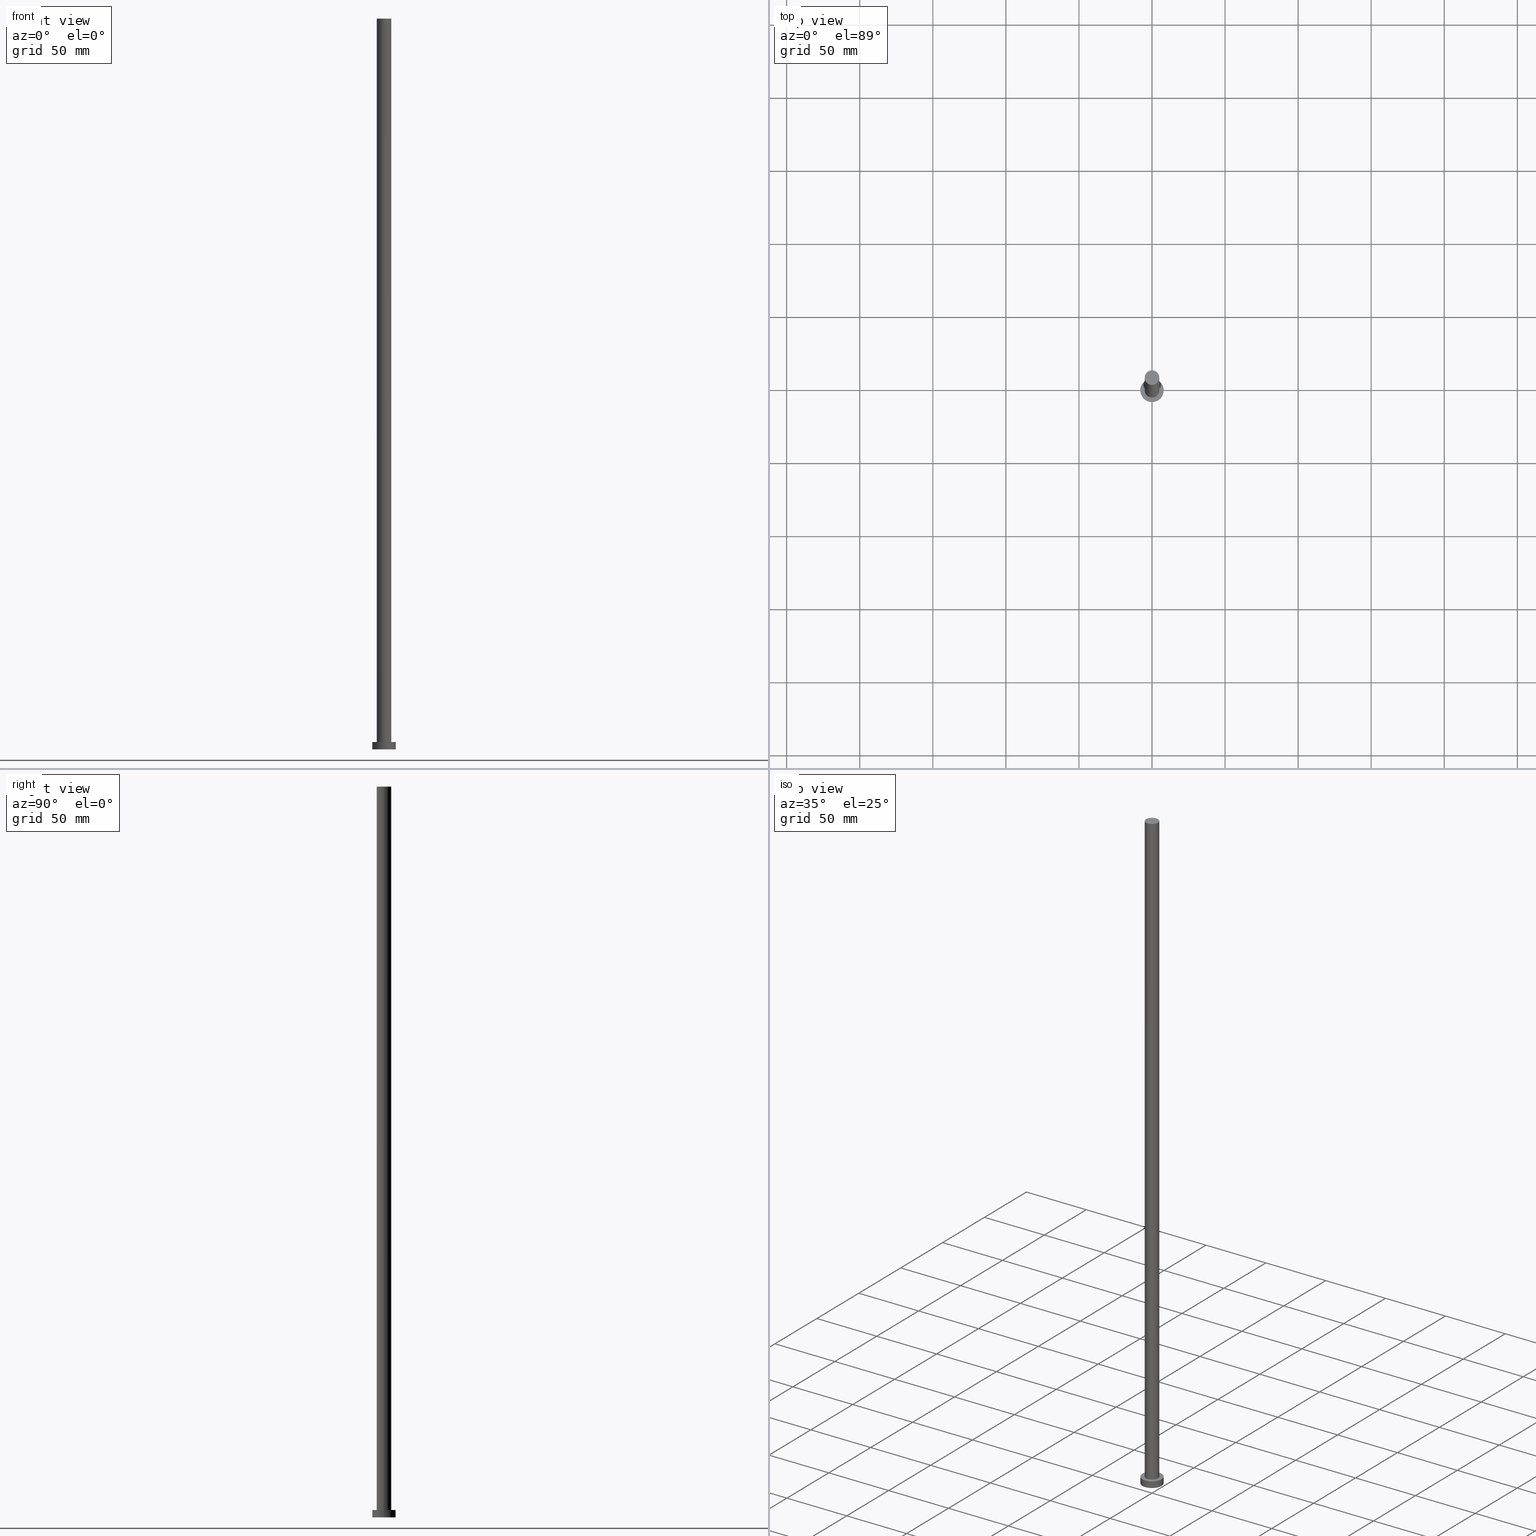
[diagram: canonical four-view strip — front | top / right | iso, engineering-drawing reading convention]
A machine part, canonical four-view strip (front | top / right | iso — engineering-drawing reading convention). The complete STEP part file that produces these views, byte-faithful:
ISO-10303-21;
HEADER;
FILE_DESCRIPTION (( 'STEP AP203' ),
    '1' );
FILE_NAME ('cfef.STEP',
    '2023-02-13T09:58:44',
    ( '' ),
    ( '' ),
    'SwSTEP 2.0',
    'SolidWorks 2019',
    '' );
FILE_SCHEMA (( 'CONFIG_CONTROL_DESIGN' ));
ENDSEC;

DATA;
#1 = DIRECTION ( 'NONE',  ( 1.000000000000000000, 0.000000000000000000, -0.000000000000000000 ) ) ;
#2 = DATE_AND_TIME ( #242, #125 ) ;
#3 = LINE ( 'NONE', #238, #71 ) ;
#4 = ORIENTED_EDGE ( 'NONE', *, *, #44, .T. ) ;
#5 = CC_DESIGN_APPROVAL ( #38, ( #83 ) ) ;
#6 = DIRECTION ( 'NONE',  ( 0.000000000000000000, 0.000000000000000000, 1.000000000000000000 ) ) ;
#7 = DIRECTION ( 'NONE',  ( -0.000000000000000000, -0.000000000000000000, -1.000000000000000000 ) ) ;
#8 = AXIS2_PLACEMENT_3D ( 'NONE', #141, #221, #95 ) ;
#9 = DIRECTION ( 'NONE',  ( -0.000000000000000000, -0.000000000000000000, -1.000000000000000000 ) ) ;
#10 = EDGE_LOOP ( 'NONE', ( #132, #246, #137, #88 ) ) ;
#11 = CARTESIAN_POINT ( 'NONE',  ( 0.000000000000000000, 0.000000000000000000, 5.000000000000000000 ) ) ;
#12 = ADVANCED_BREP_SHAPE_REPRESENTATION ( 'cfef', ( #127, #27 ), #66 ) ;
#13 = DIRECTION ( 'NONE',  ( -1.000000000000000000, 0.000000000000000000, 0.000000000000000000 ) ) ;
#14 = AXIS2_PLACEMENT_3D ( 'NONE', #106, #57, #1 ) ;
#15 = EDGE_CURVE ( 'NONE', #169, #87, #166, .T. ) ;
#16 = DIRECTION ( 'NONE',  ( -0.000000000000000000, -0.000000000000000000, -1.000000000000000000 ) ) ;
#17 = DIRECTION ( 'NONE',  ( -1.000000000000000000, 0.000000000000000000, 0.000000000000000000 ) ) ;
#18 = DESIGN_CONTEXT ( 'detailed design', #190, 'design' ) ;
#19 = PRODUCT_DEFINITION_SHAPE ( 'NONE', 'NONE',  #227 ) ;
#20 = DIRECTION ( 'NONE',  ( 1.000000000000000000, 0.000000000000000000, -0.000000000000000000 ) ) ;
#21 = ORIENTED_EDGE ( 'NONE', *, *, #245, .F. ) ;
#22 = ORIENTED_EDGE ( 'NONE', *, *, #187, .F. ) ;
#23 = DIRECTION ( 'NONE',  ( 1.000000000000000000, 0.000000000000000000, 0.000000000000000000 ) ) ;
#24 = PRODUCT_RELATED_PRODUCT_CATEGORY ( 'detail', '', ( #59 ) ) ;
#25 = CARTESIAN_POINT ( 'NONE',  ( 0.000000000000000000, 0.000000000000000000, 5.000000000000000000 ) ) ;
#26 = CYLINDRICAL_SURFACE ( 'NONE', #100, 8.000000000000000000 ) ;
#27 = AXIS2_PLACEMENT_3D ( 'NONE', #163, #35, #47 ) ;
#28 = FACE_OUTER_BOUND ( 'NONE', #129, .T. ) ;
#29 = APPROVAL ( #119, 'NEUR�EN�' ) ;
#30 = ORIENTED_EDGE ( 'NONE', *, *, #63, .F. ) ;
#31 = LOCAL_TIME ( 10, 58, 44.00000000000000000, #164 ) ;
#32 = EDGE_CURVE ( 'NONE', #85, #229, #255, .T. ) ;
#33 = PERSON_AND_ORGANIZATION_ROLE ( 'design_owner' ) ;
#34 = ADVANCED_FACE ( 'NONE', ( #143 ), #121, .T. ) ;
#35 = DIRECTION ( 'NONE',  ( 0.000000000000000000, 0.000000000000000000, 1.000000000000000000 ) ) ;
#36 = EDGE_CURVE ( 'NONE', #229, #85, #174, .T. ) ;
#37 = CARTESIAN_POINT ( 'NONE',  ( 0.000000000000000000, 0.000000000000000000, 5.000000000000000000 ) ) ;
#38 = APPROVAL ( #248, 'NEUR�EN�' ) ;
#39 = AXIS2_PLACEMENT_3D ( 'NONE', #11, #243, #23 ) ;
#40 = EDGE_LOOP ( 'NONE', ( #155, #114, #4, #30 ) ) ;
#41 = ORIENTED_EDGE ( 'NONE', *, *, #187, .T. ) ;
#42 = DIRECTION ( 'NONE',  ( 0.000000000000000000, 0.000000000000000000, 1.000000000000000000 ) ) ;
#43 = EDGE_CURVE ( 'NONE', #229, #169, #144, .T. ) ;
#44 = EDGE_CURVE ( 'NONE', #67, #117, #136, .T. ) ;
#45 = APPROVAL_ROLE ( '' ) ;
#46 = AXIS2_PLACEMENT_3D ( 'NONE', #126, #162, #17 ) ;
#47 = DIRECTION ( 'NONE',  ( 1.000000000000000000, 0.000000000000000000, 0.000000000000000000 ) ) ;
#48 = CARTESIAN_POINT ( 'NONE',  ( 5.000000000000000888, 6.123233995736767268E-16, 500.0000000000000000 ) ) ;
#49 = AXIS2_PLACEMENT_3D ( 'NONE', #25, #192, #68 ) ;
#50 = APPLICATION_PROTOCOL_DEFINITION ( 'international standard', 'config_control_design', 1994, #251 ) ;
#51 = FACE_OUTER_BOUND ( 'NONE', #134, .T. ) ;
#52 = COORDINATED_UNIVERSAL_TIME_OFFSET ( 1, 0, .AHEAD. ) ;
#53 = DIRECTION ( 'NONE',  ( 1.000000000000000000, 0.000000000000000000, 0.000000000000000000 ) ) ;
#54 = CC_DESIGN_PERSON_AND_ORGANIZATION_ASSIGNMENT ( #76, #33, ( #59 ) ) ;
#55 = CYLINDRICAL_SURFACE ( 'NONE', #46, 5.000000000000000888 ) ;
#56 = CC_DESIGN_APPROVAL ( #29, ( #227 ) ) ;
#57 = DIRECTION ( 'NONE',  ( 0.000000000000000000, 0.000000000000000000, 1.000000000000000000 ) ) ;
#58 = EDGE_CURVE ( 'NONE', #85, #87, #146, .T. ) ;
#59 = PRODUCT ( 'cfef', 'cfef', '', ( #142 ) ) ;
#60 = SECURITY_CLASSIFICATION_LEVEL ( 'unclassified' ) ;
#61 = PRODUCT_DEFINITION_FORMATION_WITH_SPECIFIED_SOURCE ( 'LIBOVOLN�', '', #59, .NOT_KNOWN. ) ;
#62 = CARTESIAN_POINT ( 'NONE',  ( -5.000000000000000888, 0.000000000000000000, 5.000000000000000000 ) ) ;
#63 = EDGE_CURVE ( 'NONE', #158, #117, #165, .T. ) ;
#64 = ORIENTED_EDGE ( 'NONE', *, *, #36, .T. ) ;
#65 = EDGE_LOOP ( 'NONE', ( #22, #208 ) ) ;
#66 =( GEOMETRIC_REPRESENTATION_CONTEXT ( 3 ) GLOBAL_UNCERTAINTY_ASSIGNED_CONTEXT ( ( #203 ) ) GLOBAL_UNIT_ASSIGNED_CONTEXT ( ( #151, #210, #170 ) ) REPRESENTATION_CONTEXT ( 'NONE', 'WORKASPACE' ) );
#67 = VERTEX_POINT ( 'NONE', #253 ) ;
#68 = DIRECTION ( 'NONE',  ( 1.000000000000000000, 0.000000000000000000, -0.000000000000000000 ) ) ;
#69 = COORDINATED_UNIVERSAL_TIME_OFFSET ( 1, 0, .AHEAD. ) ;
#70 = ORIENTED_EDGE ( 'NONE', *, *, #32, .F. ) ;
#71 = VECTOR ( 'NONE', #9, 1000.000000000000000 ) ;
#72 = PERSON_AND_ORGANIZATION ( #153, #150 ) ;
#73 = PERSON_AND_ORGANIZATION ( #153, #150 ) ;
#74 = ADVANCED_FACE ( 'NONE', ( #77 ), #235, .T. ) ;
#75 = CARTESIAN_POINT ( 'NONE',  ( -8.000000000000000000, 0.000000000000000000, 5.000000000000000000 ) ) ;
#76 = PERSON_AND_ORGANIZATION ( #153, #150 ) ;
#77 = FACE_OUTER_BOUND ( 'NONE', #40, .T. ) ;
#78 = CARTESIAN_POINT ( 'NONE',  ( 0.000000000000000000, 0.000000000000000000, 500.0000000000000000 ) ) ;
#79 = AXIS2_PLACEMENT_3D ( 'NONE', #182, #6, #20 ) ;
#80 = AXIS2_PLACEMENT_3D ( 'NONE', #213, #111, #228 ) ;
#81 = ADVANCED_FACE ( 'NONE', ( #103 ), #55, .T. ) ;
#82 = PERSON_AND_ORGANIZATION ( #153, #150 ) ;
#83 = SECURITY_CLASSIFICATION ( '', '', #60 ) ;
#84 = CARTESIAN_POINT ( 'NONE',  ( 0.000000000000000000, 0.000000000000000000, 5.000000000000000000 ) ) ;
#85 = VERTEX_POINT ( 'NONE', #181 ) ;
#86 = ORIENTED_EDGE ( 'NONE', *, *, #43, .T. ) ;
#87 = VERTEX_POINT ( 'NONE', #62 ) ;
#88 = ORIENTED_EDGE ( 'NONE', *, *, #245, .T. ) ;
#89 = ORIENTED_EDGE ( 'NONE', *, *, #58, .T. ) ;
#90 = ORIENTED_EDGE ( 'NONE', *, *, #237, .T. ) ;
#91 = ORIENTED_EDGE ( 'NONE', *, *, #32, .T. ) ;
#92 = CALENDAR_DATE ( 2023, 13, 2 ) ;
#93 = LOCAL_TIME ( 10, 58, 44.00000000000000000, #161 ) ;
#94 = VERTEX_POINT ( 'NONE', #205 ) ;
#95 = DIRECTION ( 'NONE',  ( 1.000000000000000000, 0.000000000000000000, 0.000000000000000000 ) ) ;
#96 = PERSON_AND_ORGANIZATION ( #153, #150 ) ;
#97 = CARTESIAN_POINT ( 'NONE',  ( 0.000000000000000000, 0.000000000000000000, 500.0000000000000000 ) ) ;
#98 = APPROVAL_DATE_TIME ( #176, #184 ) ;
#99 = DIRECTION ( 'NONE',  ( 0.000000000000000000, 0.000000000000000000, 1.000000000000000000 ) ) ;
#100 = AXIS2_PLACEMENT_3D ( 'NONE', #156, #7, #194 ) ;
#101 = CALENDAR_DATE ( 2023, 13, 2 ) ;
#102 = CARTESIAN_POINT ( 'NONE',  ( -5.000000000000000888, 0.000000000000000000, 500.0000000000000000 ) ) ;
#103 = FACE_OUTER_BOUND ( 'NONE', #191, .T. ) ;
#104 = CC_DESIGN_SECURITY_CLASSIFICATION ( #83, ( #61 ) ) ;
#105 = CC_DESIGN_PERSON_AND_ORGANIZATION_ASSIGNMENT ( #145, #131, ( #61 ) ) ;
#106 = CARTESIAN_POINT ( 'NONE',  ( 0.000000000000000000, 0.000000000000000000, 500.0000000000000000 ) ) ;
#107 = CARTESIAN_POINT ( 'NONE',  ( 0.000000000000000000, 0.000000000000000000, 5.000000000000000000 ) ) ;
#108 = ORIENTED_EDGE ( 'NONE', *, *, #43, .F. ) ;
#109 = VECTOR ( 'NONE', #180, 1000.000000000000000 ) ;
#110 = PLANE ( 'NONE',  #79 ) ;
#111 = DIRECTION ( 'NONE',  ( 0.000000000000000000, 0.000000000000000000, 1.000000000000000000 ) ) ;
#112 = CARTESIAN_POINT ( 'NONE',  ( 0.000000000000000000, 0.000000000000000000, 0.000000000000000000 ) ) ;
#113 = CLOSED_SHELL ( 'NONE', ( #34, #74, #215, #232, #122, #81, #217 ) ) ;
#114 = ORIENTED_EDGE ( 'NONE', *, *, #199, .T. ) ;
#115 = DIRECTION ( 'NONE',  ( 1.000000000000000000, 0.000000000000000000, 0.000000000000000000 ) ) ;
#116 = ORIENTED_EDGE ( 'NONE', *, *, #58, .F. ) ;
#117 = VERTEX_POINT ( 'NONE', #130 ) ;
#118 = VECTOR ( 'NONE', #16, 1000.000000000000000 ) ;
#119 = APPROVAL_STATUS ( 'not_yet_approved' ) ;
#120 = APPROVAL_STATUS ( 'not_yet_approved' ) ;
#121 = CYLINDRICAL_SURFACE ( 'NONE', #207, 5.000000000000000888 ) ;
#122 = ADVANCED_FACE ( 'NONE', ( #204 ), #110, .F. ) ;
#123 = COORDINATED_UNIVERSAL_TIME_OFFSET ( 1, 0, .AHEAD. ) ;
#124 = DIRECTION ( 'NONE',  ( 1.000000000000000000, 0.000000000000000000, 0.000000000000000000 ) ) ;
#125 = LOCAL_TIME ( 10, 58, 44.00000000000000000, #52 ) ;
#126 = CARTESIAN_POINT ( 'NONE',  ( 0.000000000000000000, 0.000000000000000000, 500.0000000000000000 ) ) ;
#127 = MANIFOLD_SOLID_BREP ( 'P�idat vysunut�m3', #113 ) ;
#128 = AXIS2_PLACEMENT_3D ( 'NONE', #84, #225, #202 ) ;
#129 = EDGE_LOOP ( 'NONE', ( #90, #188 ) ) ;
#130 = CARTESIAN_POINT ( 'NONE',  ( -8.000000000000000000, 0.000000000000000000, 0.000000000000000000 ) ) ;
#131 = PERSON_AND_ORGANIZATION_ROLE ( 'design_supplier' ) ;
#132 = ORIENTED_EDGE ( 'NONE', *, *, #199, .F. ) ;
#133 = PLANE ( 'NONE',  #49 ) ;
#134 = EDGE_LOOP ( 'NONE', ( #91, #64 ) ) ;
#135 = APPROVAL_DATE_TIME ( #138, #38 ) ;
#136 = CIRCLE ( 'NONE', #8, 8.000000000000000000 ) ;
#137 = ORIENTED_EDGE ( 'NONE', *, *, #63, .T. ) ;
#138 = DATE_AND_TIME ( #159, #152 ) ;
#139 = APPROVAL_DATE_TIME ( #179, #29 ) ;
#140 = PERSON_AND_ORGANIZATION_ROLE ( 'classification_officer' ) ;
#141 = CARTESIAN_POINT ( 'NONE',  ( 0.000000000000000000, 0.000000000000000000, 0.000000000000000000 ) ) ;
#142 = MECHANICAL_CONTEXT ( 'NONE', #251, 'mechanical' ) ;
#143 = FACE_OUTER_BOUND ( 'NONE', #209, .T. ) ;
#144 = LINE ( 'NONE', #48, #118 ) ;
#145 = PERSON_AND_ORGANIZATION ( #153, #150 ) ;
#146 = LINE ( 'NONE', #102, #183 ) ;
#147 = CARTESIAN_POINT ( 'NONE',  ( -8.000000000000000000, 0.000000000000000000, 5.000000000000000000 ) ) ;
#148 = CC_DESIGN_DATE_AND_TIME_ASSIGNMENT ( #173, #249, ( #227 ) ) ;
#149 = EDGE_LOOP ( 'NONE', ( #21, #186 ) ) ;
#150 = ORGANIZATION ( 'NEUR�EN�', 'NEUR�EN�', '' ) ;
#151 =( LENGTH_UNIT ( ) NAMED_UNIT ( * ) SI_UNIT ( .MILLI., .METRE. ) );
#152 = LOCAL_TIME ( 10, 58, 44.00000000000000000, #69 ) ;
#153 = PERSON ( 'NEUR�EN�', 'NEUR�EN�', 'NEUR�EN�', ('NEUR�EN�'), ('NEUR�EN�'), ('NEUR�EN�') ) ;
#154 = EDGE_CURVE ( 'NONE', #94, #158, #157, .T. ) ;
#155 = ORIENTED_EDGE ( 'NONE', *, *, #154, .F. ) ;
#156 = CARTESIAN_POINT ( 'NONE',  ( 0.000000000000000000, 0.000000000000000000, 5.000000000000000000 ) ) ;
#157 = CIRCLE ( 'NONE', #128, 8.000000000000000000 ) ;
#158 = VERTEX_POINT ( 'NONE', #147 ) ;
#159 = CALENDAR_DATE ( 2023, 13, 2 ) ;
#160 = ORIENTED_EDGE ( 'NONE', *, *, #36, .F. ) ;
#161 = COORDINATED_UNIVERSAL_TIME_OFFSET ( 1, 0, .AHEAD. ) ;
#162 = DIRECTION ( 'NONE',  ( -0.000000000000000000, -0.000000000000000000, -1.000000000000000000 ) ) ;
#163 = CARTESIAN_POINT ( 'NONE',  ( 0.000000000000000000, 0.000000000000000000, 0.000000000000000000 ) ) ;
#164 = COORDINATED_UNIVERSAL_TIME_OFFSET ( 1, 0, .AHEAD. ) ;
#165 = LINE ( 'NONE', #75, #109 ) ;
#166 = CIRCLE ( 'NONE', #80, 5.000000000000000888 ) ;
#167 = DATE_TIME_ROLE ( 'classification_date' ) ;
#168 = DIRECTION ( 'NONE',  ( 0.000000000000000000, 0.000000000000000000, 1.000000000000000000 ) ) ;
#169 = VERTEX_POINT ( 'NONE', #185 ) ;
#170 =( NAMED_UNIT ( * ) SI_UNIT ( $, .STERADIAN. ) SOLID_ANGLE_UNIT ( ) );
#171 = FACE_BOUND ( 'NONE', #65, .T. ) ;
#172 = CC_DESIGN_PERSON_AND_ORGANIZATION_ASSIGNMENT ( #96, #196, ( #227 ) ) ;
#173 = DATE_AND_TIME ( #92, #31 ) ;
#174 = CIRCLE ( 'NONE', #226, 5.000000000000000888 ) ;
#175 = DIRECTION ( 'NONE',  ( 0.000000000000000000, 0.000000000000000000, 1.000000000000000000 ) ) ;
#176 = DATE_AND_TIME ( #101, #93 ) ;
#177 = PERSON_AND_ORGANIZATION ( #153, #150 ) ;
#178 = LOCAL_TIME ( 10, 58, 44.00000000000000000, #123 ) ;
#179 = DATE_AND_TIME ( #201, #178 ) ;
#180 = DIRECTION ( 'NONE',  ( -0.000000000000000000, -0.000000000000000000, -1.000000000000000000 ) ) ;
#181 = CARTESIAN_POINT ( 'NONE',  ( -5.000000000000000888, 0.000000000000000000, 500.0000000000000000 ) ) ;
#182 = CARTESIAN_POINT ( 'NONE',  ( 0.000000000000000000, 0.000000000000000000, 0.000000000000000000 ) ) ;
#183 = VECTOR ( 'NONE', #198, 1000.000000000000000 ) ;
#184 = APPROVAL ( #120, 'NEUR�EN�' ) ;
#185 = CARTESIAN_POINT ( 'NONE',  ( 5.000000000000000888, 6.123233995736767268E-16, 5.000000000000000000 ) ) ;
#186 = ORIENTED_EDGE ( 'NONE', *, *, #44, .F. ) ;
#187 = EDGE_CURVE ( 'NONE', #87, #169, #212, .T. ) ;
#188 = ORIENTED_EDGE ( 'NONE', *, *, #154, .T. ) ;
#189 = CIRCLE ( 'NONE', #200, 8.000000000000000000 ) ;
#190 = APPLICATION_CONTEXT ( 'configuration controlled 3d designs of mechanical parts and assemblies' ) ;
#191 = EDGE_LOOP ( 'NONE', ( #108, #70, #89, #41 ) ) ;
#192 = DIRECTION ( 'NONE',  ( 0.000000000000000000, 0.000000000000000000, 1.000000000000000000 ) ) ;
#193 = FACE_OUTER_BOUND ( 'NONE', #10, .T. ) ;
#194 = DIRECTION ( 'NONE',  ( -1.000000000000000000, 0.000000000000000000, 0.000000000000000000 ) ) ;
#195 = CC_DESIGN_APPROVAL ( #184, ( #61 ) ) ;
#196 = PERSON_AND_ORGANIZATION_ROLE ( 'creator' ) ;
#197 = APPROVAL_ROLE ( '' ) ;
#198 = DIRECTION ( 'NONE',  ( -0.000000000000000000, -0.000000000000000000, -1.000000000000000000 ) ) ;
#199 = EDGE_CURVE ( 'NONE', #94, #67, #3, .T. ) ;
#200 = AXIS2_PLACEMENT_3D ( 'NONE', #112, #42, #115 ) ;
#201 = CALENDAR_DATE ( 2023, 13, 2 ) ;
#202 = DIRECTION ( 'NONE',  ( 1.000000000000000000, 0.000000000000000000, 0.000000000000000000 ) ) ;
#203 = UNCERTAINTY_MEASURE_WITH_UNIT (LENGTH_MEASURE( 1.000000000000000082E-05 ), #151, 'distance_accuracy_value', 'NONE');
#204 = FACE_OUTER_BOUND ( 'NONE', #149, .T. ) ;
#205 = CARTESIAN_POINT ( 'NONE',  ( 8.000000000000000000, 9.797174393178825657E-16, 5.000000000000000000 ) ) ;
#206 = PLANE ( 'NONE',  #14 ) ;
#207 = AXIS2_PLACEMENT_3D ( 'NONE', #78, #218, #13 ) ;
#208 = ORIENTED_EDGE ( 'NONE', *, *, #15, .F. ) ;
#209 = EDGE_LOOP ( 'NONE', ( #160, #86, #211, #116 ) ) ;
#210 =( NAMED_UNIT ( * ) PLANE_ANGLE_UNIT ( ) SI_UNIT ( $, .RADIAN. ) );
#211 = ORIENTED_EDGE ( 'NONE', *, *, #15, .T. ) ;
#212 = CIRCLE ( 'NONE', #247, 5.000000000000000888 ) ;
#213 = CARTESIAN_POINT ( 'NONE',  ( 0.000000000000000000, 0.000000000000000000, 5.000000000000000000 ) ) ;
#214 = APPROVAL_PERSON_ORGANIZATION ( #82, #38, #45 ) ;
#215 = ADVANCED_FACE ( 'NONE', ( #193 ), #26, .T. ) ;
#216 = DIRECTION ( 'NONE',  ( -1.000000000000000000, 0.000000000000000000, 0.000000000000000000 ) ) ;
#217 = ADVANCED_FACE ( 'NONE', ( #51 ), #206, .T. ) ;
#218 = DIRECTION ( 'NONE',  ( -0.000000000000000000, -0.000000000000000000, -1.000000000000000000 ) ) ;
#219 = APPLICATION_PROTOCOL_DEFINITION ( 'international standard', 'config_control_design', 1994, #190 ) ;
#220 = CIRCLE ( 'NONE', #39, 8.000000000000000000 ) ;
#221 = DIRECTION ( 'NONE',  ( 0.000000000000000000, 0.000000000000000000, 1.000000000000000000 ) ) ;
#222 = DIRECTION ( 'NONE',  ( 1.000000000000000000, 0.000000000000000000, 0.000000000000000000 ) ) ;
#223 = CARTESIAN_POINT ( 'NONE',  ( 5.000000000000000888, 6.123233995736767268E-16, 500.0000000000000000 ) ) ;
#224 = CC_DESIGN_DATE_AND_TIME_ASSIGNMENT ( #2, #167, ( #83 ) ) ;
#225 = DIRECTION ( 'NONE',  ( 0.000000000000000000, 0.000000000000000000, 1.000000000000000000 ) ) ;
#226 = AXIS2_PLACEMENT_3D ( 'NONE', #97, #175, #124 ) ;
#227 = PRODUCT_DEFINITION ( 'NEZN�M�', '', #61, #18 ) ;
#228 = DIRECTION ( 'NONE',  ( 1.000000000000000000, 0.000000000000000000, 0.000000000000000000 ) ) ;
#229 = VERTEX_POINT ( 'NONE', #223 ) ;
#230 = APPROVAL_PERSON_ORGANIZATION ( #72, #29, #231 ) ;
#231 = APPROVAL_ROLE ( '' ) ;
#232 = ADVANCED_FACE ( 'NONE', ( #171, #28 ), #133, .T. ) ;
#233 = DIRECTION ( 'NONE',  ( -0.000000000000000000, -0.000000000000000000, -1.000000000000000000 ) ) ;
#234 = AXIS2_PLACEMENT_3D ( 'NONE', #236, #99, #53 ) ;
#235 = CYLINDRICAL_SURFACE ( 'NONE', #250, 8.000000000000000000 ) ;
#236 = CARTESIAN_POINT ( 'NONE',  ( 0.000000000000000000, 0.000000000000000000, 500.0000000000000000 ) ) ;
#237 = EDGE_CURVE ( 'NONE', #158, #94, #220, .T. ) ;
#238 = CARTESIAN_POINT ( 'NONE',  ( 8.000000000000000000, 9.797174393178825657E-16, 5.000000000000000000 ) ) ;
#239 = CC_DESIGN_PERSON_AND_ORGANIZATION_ASSIGNMENT ( #177, #252, ( #61 ) ) ;
#240 = APPROVAL_PERSON_ORGANIZATION ( #73, #184, #197 ) ;
#241 = CC_DESIGN_PERSON_AND_ORGANIZATION_ASSIGNMENT ( #254, #140, ( #83 ) ) ;
#242 = CALENDAR_DATE ( 2023, 13, 2 ) ;
#243 = DIRECTION ( 'NONE',  ( 0.000000000000000000, 0.000000000000000000, 1.000000000000000000 ) ) ;
#244 = SHAPE_DEFINITION_REPRESENTATION ( #19, #12 ) ;
#245 = EDGE_CURVE ( 'NONE', #117, #67, #189, .T. ) ;
#246 = ORIENTED_EDGE ( 'NONE', *, *, #237, .F. ) ;
#247 = AXIS2_PLACEMENT_3D ( 'NONE', #107, #168, #222 ) ;
#248 = APPROVAL_STATUS ( 'not_yet_approved' ) ;
#249 = DATE_TIME_ROLE ( 'creation_date' ) ;
#250 = AXIS2_PLACEMENT_3D ( 'NONE', #37, #233, #216 ) ;
#251 = APPLICATION_CONTEXT ( 'configuration controlled 3d designs of mechanical parts and assemblies' ) ;
#252 = PERSON_AND_ORGANIZATION_ROLE ( 'creator' ) ;
#253 = CARTESIAN_POINT ( 'NONE',  ( 8.000000000000000000, 9.797174393178825657E-16, 0.000000000000000000 ) ) ;
#254 = PERSON_AND_ORGANIZATION ( #153, #150 ) ;
#255 = CIRCLE ( 'NONE', #234, 5.000000000000000888 ) ;
ENDSEC;
END-ISO-10303-21;
